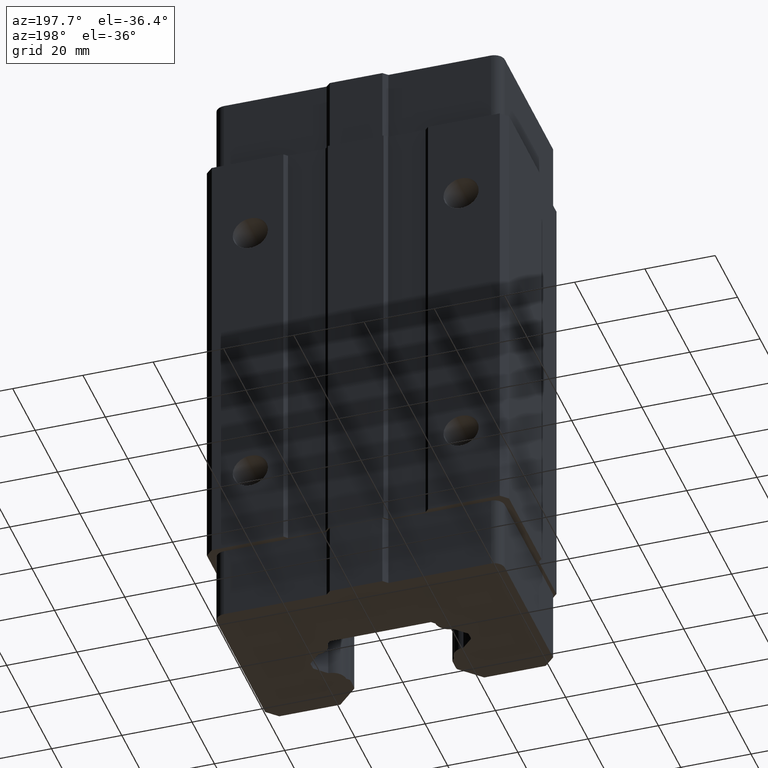
[diagram: clean part render]
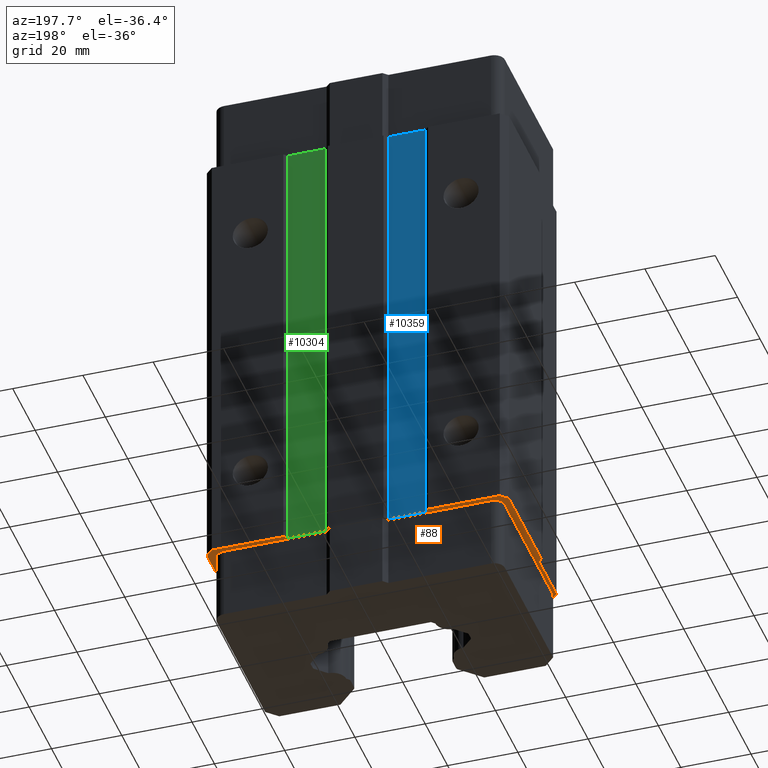
[diagram: same view with three faces highlighted in distinct colors, each labeled with its STEP entity id]
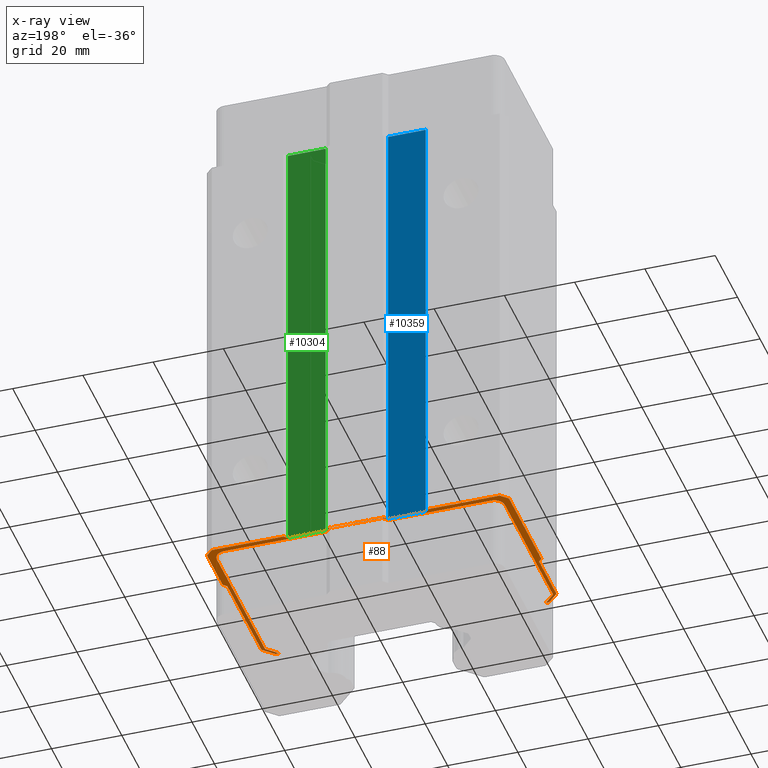
[diagram: x-ray of the same camera — body ghosted, the three highlighted faces saturated]
A machine part, auxiliary view with three faces highlighted in distinct colors.
The next image is the same camera in x-ray (body ghosted, the three faces saturated) — at least one of them is partly hidden behind the body in this view.
Their STEP definitions:

[orange] entity #88 — the highlighted planar face has unit normal (0, 0, 1).
#33 = ORIENTED_EDGE ( 'NONE', *, *, #10121, .T. ) ;
#34 = ORIENTED_EDGE ( 'NONE', *, *, #10635, .T. ) ;
#35 = ORIENTED_EDGE ( 'NONE', *, *, #10323, .F. ) ;
#50 = ORIENTED_EDGE ( 'NONE', *, *, #4825, .F. ) ;
#74 = ORIENTED_EDGE ( 'NONE', *, *, #2151, .F. ) ;
#80 = ORIENTED_EDGE ( 'NONE', *, *, #10312, .F. ) ;
#81 = ORIENTED_EDGE ( 'NONE', *, *, #10108, .T. ) ;
#82 = ORIENTED_EDGE ( 'NONE', *, *, #279, .F. ) ;
#83 = ORIENTED_EDGE ( 'NONE', *, *, #10117, .T. ) ;
#84 = ORIENTED_EDGE ( 'NONE', *, *, #10303, .F. ) ;
#86 = ORIENTED_EDGE ( 'NONE', *, *, #12335, .F. ) ;
#88 = ADVANCED_FACE ( 'NONE', ( #963 ), #962, .F. ) ;
#97 = VERTEX_POINT ( 'NONE', #996 ) ;
#113 = EDGE_LOOP ( 'NONE', ( #82, #81, #86, #83, #84, #34, #35, #33, #4910, #4890, #4869, #74, #80, #50, #5887, #5535, #6487, #9916, #6388, #6382, #6101, #9835, #9840, #6443, #6140, #9920, #9881, #9884, #9870, #9912, #9905, #9908 ) ) ;
#279 = EDGE_CURVE ( 'NONE', #10123, #12288, #1335, .T. ) ;
#286 = EDGE_CURVE ( 'NONE', #12288, #10247, #1382, .T. ) ;
#958 = DIRECTION ( 'NONE',  ( 1.000000000000000000, 0.0000000000000000000, 0.0000000000000000000 ) ) ;
#959 = DIRECTION ( 'NONE',  ( 0.0000000000000000000, 0.0000000000000000000, 1.000000000000000000 ) ) ;
#960 = CARTESIAN_POINT ( 'NONE',  ( 0.0000000000000000000, 0.0000000000000000000, -64.40000000000000600 ) ) ;
#961 = AXIS2_PLACEMENT_3D ( 'NONE', #960, #959, #958 ) ;
#962 = PLANE ( 'NONE',  #961 ) ;
#963 = FACE_OUTER_BOUND ( 'NONE', #113, .T. ) ;
#996 = CARTESIAN_POINT ( 'NONE',  ( 38.99999999999999300, -28.50000000000000000, -64.40000000000000600 ) ) ;
#1332 = DIRECTION ( 'NONE',  ( -1.000000000000000000, 0.0000000000000000000, 0.0000000000000000000 ) ) ;
#1333 = VECTOR ( 'NONE', #1332, 1000.000000000000000 ) ;
#1334 = CARTESIAN_POINT ( 'NONE',  ( 0.0000000000000000000, 22.00000000000000000, -64.40000000000000600 ) ) ;
#1335 = LINE ( 'NONE', #1334, #1333 ) ;
#1379 = DIRECTION ( 'NONE',  ( -0.7071067811865482400, -0.7071067811865469100, 0.0000000000000000000 ) ) ;
#1380 = VECTOR ( 'NONE', #1379, 999.9999999999998900 ) ;
#1381 = CARTESIAN_POINT ( 'NONE',  ( -41.00000000000000000, 22.00000000000000000, -64.40000000000000600 ) ) ;
#1382 = LINE ( 'NONE', #1381, #1380 ) ;
#2124 = EDGE_CURVE ( 'NONE', #5854, #6118, #5185, .T. ) ;
#2131 = VERTEX_POINT ( 'NONE', #5236 ) ;
#2134 = VERTEX_POINT ( 'NONE', #5235 ) ;
#2136 = VERTEX_POINT ( 'NONE', #5233 ) ;
#2147 = EDGE_CURVE ( 'NONE', #2157, #2136, #5218, .T. ) ;
#2151 = EDGE_CURVE ( 'NONE', #2131, #2134, #5275, .T. ) ;
#2157 = VERTEX_POINT ( 'NONE', #5258 ) ;
#2626 = CARTESIAN_POINT ( 'NONE',  ( -38.99999999999999300, -28.50000000000000000, -64.40000000000000600 ) ) ;
#2681 = DIRECTION ( 'NONE',  ( 0.7071067811865479100, -0.7071067811865471300, 0.0000000000000000000 ) ) ;
#2682 = VECTOR ( 'NONE', #2681, 1000.000000000000000 ) ;
#2683 = CARTESIAN_POINT ( 'NONE',  ( -42.00000000000000000, -25.50000000000000400, -64.40000000000000600 ) ) ;
#2684 = LINE ( 'NONE', #2683, #2682 ) ;
#4192 = CARTESIAN_POINT ( 'NONE',  ( -41.00000000000000700, 22.00000000000000000, -64.40000000000003400 ) ) ;
#4305 = DIRECTION ( 'NONE',  ( -1.000000000000000000, 0.0000000000000000000, 0.0000000000000000000 ) ) ;
#4306 = VECTOR ( 'NONE', #4305, 1000.000000000000000 ) ;
#4307 = CARTESIAN_POINT ( 'NONE',  ( 0.0000000000000000000, 21.00000000000000000, -64.40000000000000600 ) ) ;
#4308 = LINE ( 'NONE', #4307, #4306 ) ;
#4825 = EDGE_CURVE ( 'NONE', #97, #10238, #6166, .T. ) ;
#4869 = ORIENTED_EDGE ( 'NONE', *, *, #10295, .F. ) ;
#4890 = ORIENTED_EDGE ( 'NONE', *, *, #10366, .F. ) ;
#4910 = ORIENTED_EDGE ( 'NONE', *, *, #10358, .F. ) ;
#5182 = DIRECTION ( 'NONE',  ( 0.7071067811865474600, 0.7071067811865474600, 0.0000000000000000000 ) ) ;
#5183 = VECTOR ( 'NONE', #5182, 1000.000000000000100 ) ;
#5184 = CARTESIAN_POINT ( 'NONE',  ( 37.88728995361999800, -28.50000000000000000, -64.40000000000000600 ) ) ;
#5185 = LINE ( 'NONE', #5184, #5183 ) ;
#5215 = DIRECTION ( 'NONE',  ( 0.7071067811865474600, -0.7071067811865474600, 0.0000000000000000000 ) ) ;
#5216 = VECTOR ( 'NONE', #5215, 1000.000000000000100 ) ;
#5217 = CARTESIAN_POINT ( 'NONE',  ( -43.00000000000000000, -9.000000000000001800, -64.40000000000006300 ) ) ;
#5218 = LINE ( 'NONE', #5217, #5216 ) ;
#5233 = CARTESIAN_POINT ( 'NONE',  ( -41.99999999999999300, -10.00000000000000200, -64.40000000000002000 ) ) ;
#5235 = CARTESIAN_POINT ( 'NONE',  ( 42.99999999999997200, 6.000000000000036400, -64.40000000000000600 ) ) ;
#5236 = CARTESIAN_POINT ( 'NONE',  ( 41.99999999999999300, 5.000000000000000900, -64.40000000000000600 ) ) ;
#5258 = CARTESIAN_POINT ( 'NONE',  ( -43.00000000000000000, -9.000000000000001800, -64.40000000000006300 ) ) ;
#5272 = DIRECTION ( 'NONE',  ( 0.7071067811864976100, 0.7071067811865975300, 0.0000000000000000000 ) ) ;
#5273 = VECTOR ( 'NONE', #5272, 1000.000000000000100 ) ;
#5274 = CARTESIAN_POINT ( 'NONE',  ( 42.00000000000000000, 5.000000000000000000, -64.40000000000000600 ) ) ;
#5275 = LINE ( 'NONE', #5274, #5273 ) ;
#5535 = ORIENTED_EDGE ( 'NONE', *, *, #2124, .T. ) ;
#5854 = VERTEX_POINT ( 'NONE', #6478 ) ;
#5887 = ORIENTED_EDGE ( 'NONE', *, *, #5888, .F. ) ;
#5888 = EDGE_CURVE ( 'NONE', #5854, #97, #6472, .T. ) ;
#6100 = EDGE_CURVE ( 'NONE', #9909, #9893, #6513, .T. ) ;
#6101 = ORIENTED_EDGE ( 'NONE', *, *, #6100, .T. ) ;
#6107 = EDGE_CURVE ( 'NONE', #6108, #9915, #6504, .T. ) ;
#6108 = VERTEX_POINT ( 'NONE', #6500 ) ;
#6118 = VERTEX_POINT ( 'NONE', #6495 ) ;
#6140 = ORIENTED_EDGE ( 'NONE', *, *, #9923, .T. ) ;
#6163 = DIRECTION ( 'NONE',  ( 0.7071067811865479100, 0.7071067811865471300, 0.0000000000000000000 ) ) ;
#6164 = VECTOR ( 'NONE', #6163, 1000.000000000000000 ) ;
#6165 = CARTESIAN_POINT ( 'NONE',  ( 39.00000000000000000, -28.50000000000000000, -64.40000000000000600 ) ) ;
#6166 = LINE ( 'NONE', #6165, #6164 ) ;
#6225 = VERTEX_POINT ( 'NONE', #6494 ) ;
#6373 = VERTEX_POINT ( 'NONE', #6493 ) ;
#6382 = ORIENTED_EDGE ( 'NONE', *, *, #9906, .T. ) ;
#6388 = ORIENTED_EDGE ( 'NONE', *, *, #6107, .T. ) ;
#6403 = EDGE_CURVE ( 'NONE', #9808, #6521, #6492, .T. ) ;
#6443 = ORIENTED_EDGE ( 'NONE', *, *, #6548, .F. ) ;
#6461 = DIRECTION ( 'NONE',  ( 1.000000000000000000, 0.0000000000000000000, 0.0000000000000000000 ) ) ;
#6462 = VECTOR ( 'NONE', #6461, 1000.000000000000000 ) ;
#6471 = CARTESIAN_POINT ( 'NONE',  ( 20.50032659997999900, -28.50000000000000000, -64.40000000000000600 ) ) ;
#6472 = LINE ( 'NONE', #6471, #6462 ) ;
#6478 = CARTESIAN_POINT ( 'NONE',  ( 37.88728995361999100, -28.50000000000000000, -64.40000000000000600 ) ) ;
#6483 = DIRECTION ( 'NONE',  ( 0.0000000000000000000, 0.0000000000000000000, -1.000000000000000000 ) ) ;
#6484 = CARTESIAN_POINT ( 'NONE',  ( -38.05729302318999900, 17.55541702319000000, -64.40000000000000600 ) ) ;
#6485 = AXIS2_PLACEMENT_3D ( 'NONE', #6484, #6483, #6545 ) ;
#6486 = CIRCLE ( 'NONE', #6485, 3.000000000000002700 ) ;
#6487 = ORIENTED_EDGE ( 'NONE', *, *, #9850, .T. ) ;
#6488 = CARTESIAN_POINT ( 'NONE',  ( -38.05729302318999900, 20.55541702319000000, -64.40000000000000600 ) ) ;
#6489 = DIRECTION ( 'NONE',  ( -1.000000000000000000, 0.0000000000000000000, 0.0000000000000000000 ) ) ;
#6490 = VECTOR ( 'NONE', #6489, 1000.000000000000000 ) ;
#6491 = CARTESIAN_POINT ( 'NONE',  ( -8.857293023189999600, 20.55541702319000300, -64.40000000000000600 ) ) ;
#6492 = LINE ( 'NONE', #6491, #6490 ) ;
#6493 = CARTESIAN_POINT ( 'NONE',  ( 40.94270697681000100, 17.55541702318999600, -64.40000000000000600 ) ) ;
#6494 = CARTESIAN_POINT ( 'NONE',  ( -41.05729302318999900, 17.55541702319000000, -64.40000000000000600 ) ) ;
#6495 = CARTESIAN_POINT ( 'NONE',  ( 40.94270697681000100, -25.44458297680999300, -64.40000000000000600 ) ) ;
#6500 = CARTESIAN_POINT ( 'NONE',  ( 37.94270697681000100, 20.55541702319000300, -64.40000000000000600 ) ) ;
#6501 = DIRECTION ( 'NONE',  ( -1.000000000000000000, 0.0000000000000000000, 0.0000000000000000000 ) ) ;
#6502 = VECTOR ( 'NONE', #6501, 1000.000000000000000 ) ;
#6503 = CARTESIAN_POINT ( 'NONE',  ( 37.94270697681000100, 20.55541702319000300, -64.40000000000000600 ) ) ;
#6504 = LINE ( 'NONE', #6503, #6502 ) ;
#6510 = DIRECTION ( 'NONE',  ( -1.000000000000000000, 0.0000000000000000000, 0.0000000000000000000 ) ) ;
#6511 = VECTOR ( 'NONE', #6510, 1000.000000000000000 ) ;
#6512 = CARTESIAN_POINT ( 'NONE',  ( 7.442706976810000300, 21.85541702319000000, -64.40000000000000600 ) ) ;
#6513 = LINE ( 'NONE', #6512, #6511 ) ;
#6521 = VERTEX_POINT ( 'NONE', #6488 ) ;
#6522 = CARTESIAN_POINT ( 'NONE',  ( -38.00187600000000300, -28.50000000000000000, -64.40000000000000600 ) ) ;
#6529 = CARTESIAN_POINT ( 'NONE',  ( -41.05729302318999900, -25.44458297681000000, -64.40000000000000600 ) ) ;
#6545 = DIRECTION ( 'NONE',  ( 1.000000000000000000, 0.0000000000000000000, 0.0000000000000000000 ) ) ;
#6548 = EDGE_CURVE ( 'NONE', #6225, #6521, #6486, .T. ) ;
#6638 = VERTEX_POINT ( 'NONE', #6529 ) ;
#6753 = CARTESIAN_POINT ( 'NONE',  ( -8.857293023189967600, 20.55541702318997100, -64.40000000000000600 ) ) ;
#6813 = DIRECTION ( 'NONE',  ( -0.7071067811864976100, -0.7071067811865975300, 0.0000000000000000000 ) ) ;
#6814 = VECTOR ( 'NONE', #6813, 1000.000000000000100 ) ;
#6815 = CARTESIAN_POINT ( 'NONE',  ( -7.557293023189999700, 21.85541702319000000, -64.40000000000000600 ) ) ;
#6816 = LINE ( 'NONE', #6815, #6814 ) ;
#6843 = DIRECTION ( 'NONE',  ( 0.0000000000000000000, 1.000000000000000000, 0.0000000000000000000 ) ) ;
#6844 = VECTOR ( 'NONE', #6843, 1000.000000000000000 ) ;
#6845 = CARTESIAN_POINT ( 'NONE',  ( 40.94270697681000100, -25.44458297681000000, -64.40000000000000600 ) ) ;
#6846 = LINE ( 'NONE', #6845, #6844 ) ;
#6887 = DIRECTION ( 'NONE',  ( 1.000000000000000000, 0.0000000000000000000, 0.0000000000000000000 ) ) ;
#6888 = DIRECTION ( 'NONE',  ( 0.0000000000000000000, 0.0000000000000000000, -1.000000000000000000 ) ) ;
#6889 = CARTESIAN_POINT ( 'NONE',  ( 37.94270697681000100, 17.55541702319000000, -64.40000000000000600 ) ) ;
#6890 = AXIS2_PLACEMENT_3D ( 'NONE', #6889, #6888, #6887 ) ;
#6891 = CIRCLE ( 'NONE', #6890, 3.000000000000002700 ) ;
#6902 = CARTESIAN_POINT ( 'NONE',  ( -7.557293023189999700, 21.85541702319000000, -64.40000000000000600 ) ) ;
#6920 = DIRECTION ( 'NONE',  ( 1.000000000000000000, 0.0000000000000000000, 0.0000000000000000000 ) ) ;
#6921 = VECTOR ( 'NONE', #6920, 1000.000000000000000 ) ;
#6922 = CARTESIAN_POINT ( 'NONE',  ( -39.00000000000000000, -28.50000000000000000, -64.40000000000000600 ) ) ;
#6923 = LINE ( 'NONE', #6922, #6921 ) ;
#6932 = CARTESIAN_POINT ( 'NONE',  ( 7.442706976810030500, 21.85541702319002900, -64.40000000000000600 ) ) ;
#6933 = DIRECTION ( 'NONE',  ( -0.7071067811864976100, 0.7071067811865975300, 0.0000000000000000000 ) ) ;
#6934 = VECTOR ( 'NONE', #6933, 1000.000000000000100 ) ;
#6935 = CARTESIAN_POINT ( 'NONE',  ( 8.742706976810000100, 20.55541702319000300, -64.40000000000000600 ) ) ;
#6936 = LINE ( 'NONE', #6935, #6934 ) ;
#6957 = CARTESIAN_POINT ( 'NONE',  ( 8.742706976810000100, 20.55541702319000300, -64.40000000000000600 ) ) ;
#6972 = LINE ( 'NONE', #6997, #6996 ) ;
#6991 = DIRECTION ( 'NONE',  ( 0.7071067811865474600, -0.7071067811865474600, 0.0000000000000000000 ) ) ;
#6992 = VECTOR ( 'NONE', #6991, 1000.000000000000100 ) ;
#6993 = CARTESIAN_POINT ( 'NONE',  ( -41.05729302318999900, -25.44458297681000000, -64.40000000000000600 ) ) ;
#6994 = LINE ( 'NONE', #6993, #6992 ) ;
#6995 = DIRECTION ( 'NONE',  ( 0.0000000000000000000, -1.000000000000000000, 0.0000000000000000000 ) ) ;
#6996 = VECTOR ( 'NONE', #6995, 1000.000000000000000 ) ;
#6997 = CARTESIAN_POINT ( 'NONE',  ( -41.05729302318999900, 17.55541702319000000, -64.40000000000000600 ) ) ;
#7115 = VERTEX_POINT ( 'NONE', #6522 ) ;
#7389 = CARTESIAN_POINT ( 'NONE',  ( -20.57573593129000100, 22.00000000000000000, -64.40000000000000600 ) ) ;
#7390 = LINE ( 'NONE', #7389, #7448 ) ;
#7424 = CARTESIAN_POINT ( 'NONE',  ( -7.924264068711965000, 21.99999999999996400, -64.40000000000000600 ) ) ;
#7426 = CARTESIAN_POINT ( 'NONE',  ( -20.57573593129000100, 21.99999999999994000, -64.40000000000000600 ) ) ;
#7427 = DIRECTION ( 'NONE',  ( 0.7071067811864976100, 0.7071067811865975300, 0.0000000000000000000 ) ) ;
#7428 = VECTOR ( 'NONE', #7427, 1000.000000000000100 ) ;
#7429 = CARTESIAN_POINT ( 'NONE',  ( 19.57573593129000100, 21.00000000000000000, -64.40000000000000600 ) ) ;
#7430 = LINE ( 'NONE', #7429, #7428 ) ;
#7438 = DIRECTION ( 'NONE',  ( 0.7071067811865975300, 0.7071067811864976100, 0.0000000000000000000 ) ) ;
#7439 = VECTOR ( 'NONE', #7438, 1000.000000000000100 ) ;
#7440 = CARTESIAN_POINT ( 'NONE',  ( -8.924264068712000500, 21.00000000000000000, -64.40000000000000600 ) ) ;
#7441 = LINE ( 'NONE', #7440, #7439 ) ;
#7447 = DIRECTION ( 'NONE',  ( 0.7071067811865975300, -0.7071067811864976100, 0.0000000000000000000 ) ) ;
#7448 = VECTOR ( 'NONE', #7447, 1000.000000000000100 ) ;
#7469 = CARTESIAN_POINT ( 'NONE',  ( -19.57573593128996600, 21.00000000000003900, -64.40000000000000600 ) ) ;
#7479 = CARTESIAN_POINT ( 'NONE',  ( 8.924264068711965000, 20.99999999999996400, -64.40000000000000600 ) ) ;
#7563 = CARTESIAN_POINT ( 'NONE',  ( -8.924264068712000500, 20.99999999999997200, -64.40000000000000600 ) ) ;
#7643 = CARTESIAN_POINT ( 'NONE',  ( -43.00000000000000000, 20.00000000000000400, -64.40000000000003400 ) ) ;
#7648 = CARTESIAN_POINT ( 'NONE',  ( 42.00000000000007100, -25.50000000000006800, -64.40000000000000600 ) ) ;
#7668 = CARTESIAN_POINT ( 'NONE',  ( -41.99999999999999300, -25.50000000000000400, -64.40000000000000600 ) ) ;
#7679 = DIRECTION ( 'NONE',  ( 0.0000000000000000000, -1.000000000000000000, 0.0000000000000000000 ) ) ;
#7680 = VECTOR ( 'NONE', #7679, 1000.000000000000000 ) ;
#7681 = CARTESIAN_POINT ( 'NONE',  ( -43.00000000000000000, 0.0000000000000000000, -64.40000000000000600 ) ) ;
#7682 = LINE ( 'NONE', #7681, #7680 ) ;
#7729 = LINE ( 'NONE', #7790, #7789 ) ;
#7731 = CARTESIAN_POINT ( 'NONE',  ( 43.00000000000003600, 20.00000000000003900, -64.40000000000000600 ) ) ;
#7739 = DIRECTION ( 'NONE',  ( -1.000000000000000000, 0.0000000000000000000, 0.0000000000000000000 ) ) ;
#7740 = VECTOR ( 'NONE', #7739, 1000.000000000000000 ) ;
#7741 = CARTESIAN_POINT ( 'NONE',  ( 0.0000000000000000000, 22.00000000000000000, -64.40000000000000600 ) ) ;
#7742 = LINE ( 'NONE', #7741, #7740 ) ;
#7747 = DIRECTION ( 'NONE',  ( 0.0000000000000000000, -1.000000000000000000, 0.0000000000000000000 ) ) ;
#7748 = VECTOR ( 'NONE', #7747, 1000.000000000000000 ) ;
#7750 = CARTESIAN_POINT ( 'NONE',  ( -42.00000000000000000, 0.0000000000000000000, -64.40000000000000600 ) ) ;
#7752 = LINE ( 'NONE', #7750, #7748 ) ;
#7753 = DIRECTION ( 'NONE',  ( 0.0000000000000000000, 1.000000000000000000, 0.0000000000000000000 ) ) ;
#7754 = VECTOR ( 'NONE', #7753, 1000.000000000000000 ) ;
#7755 = CARTESIAN_POINT ( 'NONE',  ( 43.00000000000000000, 0.0000000000000000000, -64.40000000000000600 ) ) ;
#7756 = LINE ( 'NONE', #7755, #7754 ) ;
#7778 = DIRECTION ( 'NONE',  ( -1.000000000000000000, 0.0000000000000000000, 0.0000000000000000000 ) ) ;
#7779 = VECTOR ( 'NONE', #7778, 1000.000000000000000 ) ;
#7780 = CARTESIAN_POINT ( 'NONE',  ( 0.0000000000000000000, 21.00000000000000000, -64.40000000000000600 ) ) ;
#7781 = LINE ( 'NONE', #7780, #7779 ) ;
#7788 = DIRECTION ( 'NONE',  ( 0.0000000000000000000, 1.000000000000000000, 0.0000000000000000000 ) ) ;
#7789 = VECTOR ( 'NONE', #7788, 1000.000000000000000 ) ;
#7790 = CARTESIAN_POINT ( 'NONE',  ( 42.00000000000000000, 0.0000000000000000000, -64.40000000000000600 ) ) ;
#7791 = LINE ( 'NONE', #7858, #7857 ) ;
#7841 = DIRECTION ( 'NONE',  ( -0.7071067811865482400, 0.7071067811865469100, 0.0000000000000000000 ) ) ;
#7842 = VECTOR ( 'NONE', #7841, 999.9999999999998900 ) ;
#7843 = CARTESIAN_POINT ( 'NONE',  ( 43.00000000000000000, 20.00000000000000000, -64.40000000000000600 ) ) ;
#7844 = LINE ( 'NONE', #7843, #7842 ) ;
#7845 = CARTESIAN_POINT ( 'NONE',  ( 41.00000000000000000, 21.99999999999994000, -64.40000000000000600 ) ) ;
#7856 = DIRECTION ( 'NONE',  ( -1.000000000000000000, 0.0000000000000000000, 0.0000000000000000000 ) ) ;
#7857 = VECTOR ( 'NONE', #7856, 1000.000000000000000 ) ;
#7858 = CARTESIAN_POINT ( 'NONE',  ( 0.0000000000000000000, 22.00000000000000000, -64.40000000000000600 ) ) ;
#8358 = CARTESIAN_POINT ( 'NONE',  ( 20.57573593128996600, 22.00000000000003200, -64.40000000000000600 ) ) ;
#8366 = CARTESIAN_POINT ( 'NONE',  ( 19.57573593129000100, 20.99999999999997200, -64.40000000000000600 ) ) ;
#8368 = CARTESIAN_POINT ( 'NONE',  ( 7.924264068711999600, 21.99999999999995400, -64.40000000000000600 ) ) ;
#8387 = DIRECTION ( 'NONE',  ( 0.7071067811864976100, -0.7071067811865975300, 0.0000000000000000000 ) ) ;
#8388 = VECTOR ( 'NONE', #8387, 1000.000000000000100 ) ;
#8389 = CARTESIAN_POINT ( 'NONE',  ( 7.924264068711999600, 22.00000000000000000, -64.40000000000000600 ) ) ;
#8390 = LINE ( 'NONE', #8389, #8388 ) ;
#9808 = VERTEX_POINT ( 'NONE', #6753 ) ;
#9835 = ORIENTED_EDGE ( 'NONE', *, *, #9844, .T. ) ;
#9840 = ORIENTED_EDGE ( 'NONE', *, *, #6403, .T. ) ;
#9844 = EDGE_CURVE ( 'NONE', #9893, #9808, #6816, .T. ) ;
#9850 = EDGE_CURVE ( 'NONE', #6118, #6373, #6846, .T. ) ;
#9860 = EDGE_CURVE ( 'NONE', #6108, #6373, #6891, .T. ) ;
#9870 = ORIENTED_EDGE ( 'NONE', *, *, #10298, .F. ) ;
#9881 = ORIENTED_EDGE ( 'NONE', *, *, #9883, .F. ) ;
#9883 = EDGE_CURVE ( 'NONE', #11422, #7115, #6923, .T. ) ;
#9884 = ORIENTED_EDGE ( 'NONE', *, *, #11433, .F. ) ;
#9893 = VERTEX_POINT ( 'NONE', #6902 ) ;
#9905 = ORIENTED_EDGE ( 'NONE', *, *, #10260, .F. ) ;
#9906 = EDGE_CURVE ( 'NONE', #9915, #9909, #6936, .T. ) ;
#9908 = ORIENTED_EDGE ( 'NONE', *, *, #286, .F. ) ;
#9909 = VERTEX_POINT ( 'NONE', #6932 ) ;
#9912 = ORIENTED_EDGE ( 'NONE', *, *, #2147, .F. ) ;
#9915 = VERTEX_POINT ( 'NONE', #6957 ) ;
#9916 = ORIENTED_EDGE ( 'NONE', *, *, #9860, .F. ) ;
#9920 = ORIENTED_EDGE ( 'NONE', *, *, #9924, .T. ) ;
#9923 = EDGE_CURVE ( 'NONE', #6225, #6638, #6972, .T. ) ;
#9924 = EDGE_CURVE ( 'NONE', #6638, #7115, #6994, .T. ) ;
#10108 = EDGE_CURVE ( 'NONE', #10123, #10136, #7390, .T. ) ;
#10117 = EDGE_CURVE ( 'NONE', #10178, #10125, #7441, .T. ) ;
#10121 = EDGE_CURVE ( 'NONE', #10605, #10617, #7430, .T. ) ;
#10123 = VERTEX_POINT ( 'NONE', #7426 ) ;
#10125 = VERTEX_POINT ( 'NONE', #7424 ) ;
#10129 = VERTEX_POINT ( 'NONE', #7479 ) ;
#10136 = VERTEX_POINT ( 'NONE', #7469 ) ;
#10178 = VERTEX_POINT ( 'NONE', #7563 ) ;
#10238 = VERTEX_POINT ( 'NONE', #7648 ) ;
#10247 = VERTEX_POINT ( 'NONE', #7643 ) ;
#10260 = EDGE_CURVE ( 'NONE', #10247, #2157, #7682, .T. ) ;
#10274 = VERTEX_POINT ( 'NONE', #7668 ) ;
#10295 = EDGE_CURVE ( 'NONE', #2134, #10309, #7756, .T. ) ;
#10298 = EDGE_CURVE ( 'NONE', #2136, #10274, #7752, .T. ) ;
#10303 = EDGE_CURVE ( 'NONE', #10603, #10125, #7742, .T. ) ;
#10309 = VERTEX_POINT ( 'NONE', #7731 ) ;
#10312 = EDGE_CURVE ( 'NONE', #10238, #2131, #7729, .T. ) ;
#10323 = EDGE_CURVE ( 'NONE', #10605, #10129, #7781, .T. ) ;
#10358 = EDGE_CURVE ( 'NONE', #10362, #10617, #7791, .T. ) ;
#10362 = VERTEX_POINT ( 'NONE', #7845 ) ;
#10366 = EDGE_CURVE ( 'NONE', #10309, #10362, #7844, .T. ) ;
#10603 = VERTEX_POINT ( 'NONE', #8368 ) ;
#10605 = VERTEX_POINT ( 'NONE', #8366 ) ;
#10617 = VERTEX_POINT ( 'NONE', #8358 ) ;
#10635 = EDGE_CURVE ( 'NONE', #10603, #10129, #8390, .T. ) ;
#11422 = VERTEX_POINT ( 'NONE', #2626 ) ;
#11433 = EDGE_CURVE ( 'NONE', #10274, #11422, #2684, .T. ) ;
#12288 = VERTEX_POINT ( 'NONE', #4192 ) ;
#12335 = EDGE_CURVE ( 'NONE', #10178, #10136, #4308, .T. ) ;

[blue] entity #10359 — the highlighted planar face has unit normal (-0, -1, 0).
#4305 = DIRECTION ( 'NONE',  ( -1.000000000000000000, 0.0000000000000000000, 0.0000000000000000000 ) ) ;
#4306 = VECTOR ( 'NONE', #4305, 1000.000000000000000 ) ;
#4307 = CARTESIAN_POINT ( 'NONE',  ( 0.0000000000000000000, 21.00000000000000000, -64.40000000000000600 ) ) ;
#4308 = LINE ( 'NONE', #4307, #4306 ) ;
#7419 = DIRECTION ( 'NONE',  ( 0.0000000000000000000, 0.0000000000000000000, 1.000000000000000000 ) ) ;
#7420 = VECTOR ( 'NONE', #7419, 1000.000000000000000 ) ;
#7421 = CARTESIAN_POINT ( 'NONE',  ( -8.924264068712000500, 20.99999999999987900, 64.40000000000000600 ) ) ;
#7422 = LINE ( 'NONE', #7421, #7420 ) ;
#7469 = CARTESIAN_POINT ( 'NONE',  ( -19.57573593128996600, 21.00000000000003900, -64.40000000000000600 ) ) ;
#7471 = DIRECTION ( 'NONE',  ( 0.0000000000000000000, 0.0000000000000000000, -1.000000000000000000 ) ) ;
#7472 = VECTOR ( 'NONE', #7471, 1000.000000000000000 ) ;
#7473 = CARTESIAN_POINT ( 'NONE',  ( -19.57573593129000100, 21.00000000000000000, 64.40000000000000600 ) ) ;
#7474 = LINE ( 'NONE', #7473, #7472 ) ;
#7505 = CARTESIAN_POINT ( 'NONE',  ( -19.57573593128996600, 21.00000000000003900, 64.40000000000000600 ) ) ;
#7563 = CARTESIAN_POINT ( 'NONE',  ( -8.924264068712000500, 20.99999999999997200, -64.40000000000000600 ) ) ;
#7792 = DIRECTION ( 'NONE',  ( -1.000000000000000000, 0.0000000000000000000, 0.0000000000000000000 ) ) ;
#7793 = VECTOR ( 'NONE', #7792, 1000.000000000000000 ) ;
#7794 = CARTESIAN_POINT ( 'NONE',  ( 0.0000000000000000000, 21.00000000000000000, 64.40000000000000600 ) ) ;
#7795 = LINE ( 'NONE', #7794, #7793 ) ;
#7850 = DIRECTION ( 'NONE',  ( 1.000000000000000000, -1.130647294537000100E-014, 0.0000000000000000000 ) ) ;
#7851 = DIRECTION ( 'NONE',  ( -1.130647294537000100E-014, -1.000000000000000000, 0.0000000000000000000 ) ) ;
#7852 = CARTESIAN_POINT ( 'NONE',  ( -19.57573593129000100, 21.00000000000000000, 64.40000000000000600 ) ) ;
#7853 = AXIS2_PLACEMENT_3D ( 'NONE', #7852, #7851, #7850 ) ;
#7854 = PLANE ( 'NONE',  #7853 ) ;
#7855 = FACE_OUTER_BOUND ( 'NONE', #10343, .T. ) ;
#8293 = CARTESIAN_POINT ( 'NONE',  ( -8.924264068712000500, 20.99999999999997200, 64.40000000000000600 ) ) ;
#10127 = EDGE_CURVE ( 'NONE', #10178, #10587, #7422, .T. ) ;
#10131 = EDGE_CURVE ( 'NONE', #10163, #10136, #7474, .T. ) ;
#10136 = VERTEX_POINT ( 'NONE', #7469 ) ;
#10163 = VERTEX_POINT ( 'NONE', #7505 ) ;
#10178 = VERTEX_POINT ( 'NONE', #7563 ) ;
#10343 = EDGE_LOOP ( 'NONE', ( #10348, #12274, #12285, #12280 ) ) ;
#10348 = ORIENTED_EDGE ( 'NONE', *, *, #10357, .F. ) ;
#10357 = EDGE_CURVE ( 'NONE', #10587, #10163, #7795, .T. ) ;
#10359 = ADVANCED_FACE ( 'NONE', ( #7855 ), #7854, .F. ) ;
#10587 = VERTEX_POINT ( 'NONE', #8293 ) ;
#12274 = ORIENTED_EDGE ( 'NONE', *, *, #10127, .F. ) ;
#12280 = ORIENTED_EDGE ( 'NONE', *, *, #10131, .F. ) ;
#12285 = ORIENTED_EDGE ( 'NONE', *, *, #12335, .T. ) ;
#12335 = EDGE_CURVE ( 'NONE', #10178, #10136, #4308, .T. ) ;

[green] entity #10304 — the highlighted planar face has unit normal (-0, -1, 0).
#7423 = CARTESIAN_POINT ( 'NONE',  ( 8.924264068711965000, 20.99999999999996400, 64.40000000000000600 ) ) ;
#7475 = DIRECTION ( 'NONE',  ( 0.0000000000000000000, 0.0000000000000000000, -1.000000000000000000 ) ) ;
#7476 = VECTOR ( 'NONE', #7475, 1000.000000000000000 ) ;
#7477 = CARTESIAN_POINT ( 'NONE',  ( 8.924264068712000500, 21.00000000000000000, 64.40000000000000600 ) ) ;
#7478 = LINE ( 'NONE', #7477, #7476 ) ;
#7479 = CARTESIAN_POINT ( 'NONE',  ( 8.924264068711965000, 20.99999999999996400, -64.40000000000000600 ) ) ;
#7733 = DIRECTION ( 'NONE',  ( 1.000000000000000000, -1.130647294537000100E-014, 0.0000000000000000000 ) ) ;
#7734 = DIRECTION ( 'NONE',  ( -1.130647294537000100E-014, -1.000000000000000000, 0.0000000000000000000 ) ) ;
#7735 = CARTESIAN_POINT ( 'NONE',  ( 8.924264068712000500, 21.00000000000000000, 64.40000000000000600 ) ) ;
#7736 = AXIS2_PLACEMENT_3D ( 'NONE', #7735, #7734, #7733 ) ;
#7737 = PLANE ( 'NONE',  #7736 ) ;
#7738 = FACE_OUTER_BOUND ( 'NONE', #10285, .T. ) ;
#7778 = DIRECTION ( 'NONE',  ( -1.000000000000000000, 0.0000000000000000000, 0.0000000000000000000 ) ) ;
#7779 = VECTOR ( 'NONE', #7778, 1000.000000000000000 ) ;
#7780 = CARTESIAN_POINT ( 'NONE',  ( 0.0000000000000000000, 21.00000000000000000, -64.40000000000000600 ) ) ;
#7781 = LINE ( 'NONE', #7780, #7779 ) ;
#7784 = DIRECTION ( 'NONE',  ( -1.000000000000000000, 0.0000000000000000000, 0.0000000000000000000 ) ) ;
#7785 = VECTOR ( 'NONE', #7784, 1000.000000000000000 ) ;
#7786 = CARTESIAN_POINT ( 'NONE',  ( 0.0000000000000000000, 21.00000000000000000, 64.40000000000000600 ) ) ;
#7787 = LINE ( 'NONE', #7786, #7785 ) ;
#8276 = CARTESIAN_POINT ( 'NONE',  ( 19.57573593129000100, 20.99999999999997200, 64.40000000000000600 ) ) ;
#8361 = DIRECTION ( 'NONE',  ( 0.0000000000000000000, 0.0000000000000000000, 1.000000000000000000 ) ) ;
#8362 = VECTOR ( 'NONE', #8361, 1000.000000000000000 ) ;
#8363 = CARTESIAN_POINT ( 'NONE',  ( 19.57573593129000100, 20.99999999999987900, 64.40000000000000600 ) ) ;
#8364 = LINE ( 'NONE', #8363, #8362 ) ;
#8366 = CARTESIAN_POINT ( 'NONE',  ( 19.57573593129000100, 20.99999999999997200, -64.40000000000000600 ) ) ;
#10126 = VERTEX_POINT ( 'NONE', #7423 ) ;
#10129 = VERTEX_POINT ( 'NONE', #7479 ) ;
#10130 = EDGE_CURVE ( 'NONE', #10126, #10129, #7478, .T. ) ;
#10285 = EDGE_LOOP ( 'NONE', ( #10290, #10289, #10324, #10305 ) ) ;
#10289 = ORIENTED_EDGE ( 'NONE', *, *, #10609, .F. ) ;
#10290 = ORIENTED_EDGE ( 'NONE', *, *, #10315, .F. ) ;
#10304 = ADVANCED_FACE ( 'NONE', ( #7738 ), #7737, .F. ) ;
#10305 = ORIENTED_EDGE ( 'NONE', *, *, #10130, .F. ) ;
#10315 = EDGE_CURVE ( 'NONE', #10579, #10126, #7787, .T. ) ;
#10323 = EDGE_CURVE ( 'NONE', #10605, #10129, #7781, .T. ) ;
#10324 = ORIENTED_EDGE ( 'NONE', *, *, #10323, .T. ) ;
#10579 = VERTEX_POINT ( 'NONE', #8276 ) ;
#10605 = VERTEX_POINT ( 'NONE', #8366 ) ;
#10609 = EDGE_CURVE ( 'NONE', #10605, #10579, #8364, .T. ) ;